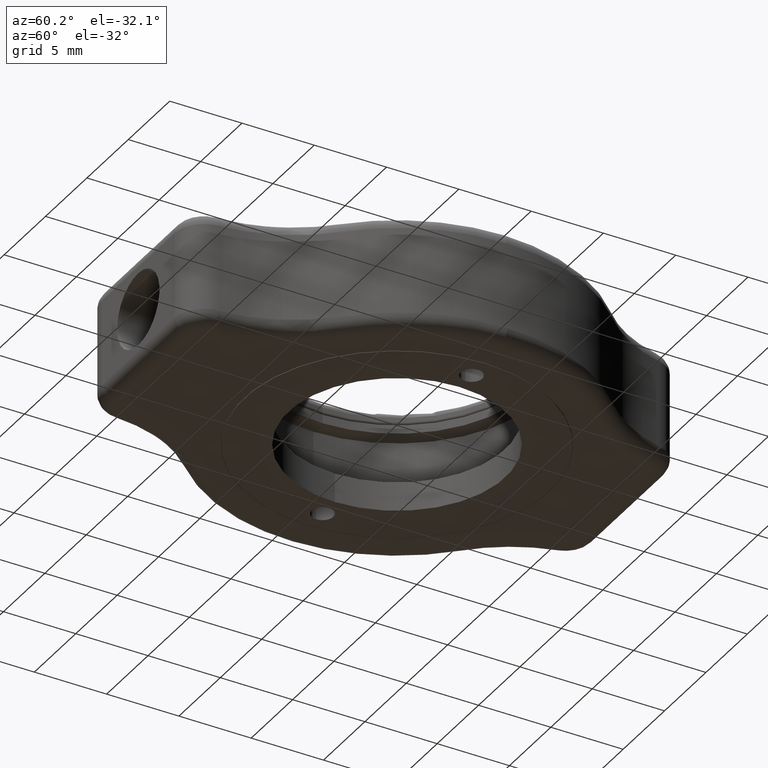
[diagram: clean part render]
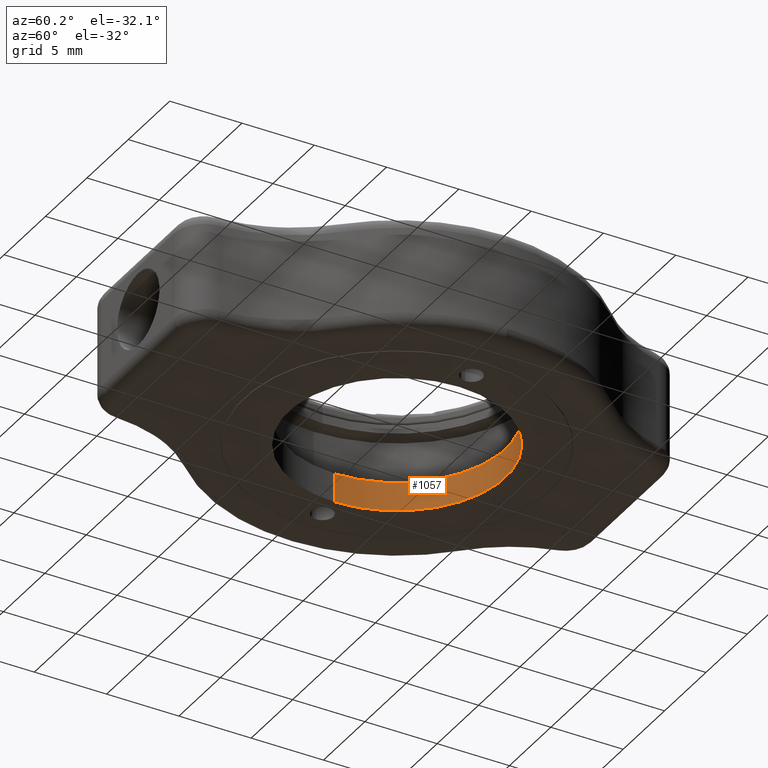
[diagram: same view with one face highlighted and labeled with its STEP entity id]
A machine part, auxiliary view. The second image highlights one B-rep face of the part: STEP entity #1057.
In plain terms, the highlighted cylindrical surface (partial cylindrical patch) has radius 7.5 mm, axis along (-0, -0, -1).
Its self-contained STEP definition (entity closure, byte-faithful):
#30 = AXIS2_PLACEMENT_3D ( 'NONE', #1720, #1380, #317 ) ;
#35 = CIRCLE ( 'NONE', #296, 7.500000000000000000 ) ;
#70 = ORIENTED_EDGE ( 'NONE', *, *, #1035, .F. ) ;
#128 = CARTESIAN_POINT ( 'NONE',  ( 2.223772548633339100, 1.633371797953784300, 32.00000000000000000 ) ) ;
#130 = VERTEX_POINT ( 'NONE', #1569 ) ;
#192 = LINE ( 'NONE', #2086, #1557 ) ;
#224 = CYLINDRICAL_SURFACE ( 'NONE', #1590, 7.500000000000000000 ) ;
#296 = AXIS2_PLACEMENT_3D ( 'NONE', #2105, #1575, #1031 ) ;
#317 = DIRECTION ( 'NONE',  ( 1.000000000000000000, 0.0000000000000000000, 0.0000000000000000000 ) ) ;
#322 = CARTESIAN_POINT ( 'NONE',  ( -5.276227451366660900, 1.633371797953784300, 30.00000000000000400 ) ) ;
#500 = LINE ( 'NONE', #1817, #1335 ) ;
#522 = EDGE_CURVE ( 'NONE', #620, #934, #35, .T. ) ;
#620 = VERTEX_POINT ( 'NONE', #865 ) ;
#657 = DIRECTION ( 'NONE',  ( -0.0000000000000000000, -0.0000000000000000000, -1.000000000000000000 ) ) ;
#680 = DIRECTION ( 'NONE',  ( -1.000000000000000000, 0.0000000000000000000, 0.0000000000000000000 ) ) ;
#763 = DIRECTION ( 'NONE',  ( -0.0000000000000000000, -0.0000000000000000000, -1.000000000000000000 ) ) ;
#865 = CARTESIAN_POINT ( 'NONE',  ( 9.723772548633338200, 1.633371797953785200, 32.00000000000000000 ) ) ;
#906 = EDGE_LOOP ( 'NONE', ( #1650, #1620, #1032, #70 ) ) ;
#934 = VERTEX_POINT ( 'NONE', #1687 ) ;
#1031 = DIRECTION ( 'NONE',  ( 1.000000000000000000, 0.0000000000000000000, 0.0000000000000000000 ) ) ;
#1032 = ORIENTED_EDGE ( 'NONE', *, *, #1973, .T. ) ;
#1035 = EDGE_CURVE ( 'NONE', #130, #2097, #2223, .T. ) ;
#1057 = ADVANCED_FACE ( 'NONE', ( #1748 ), #224, .F. ) ;
#1272 = EDGE_CURVE ( 'NONE', #620, #130, #500, .T. ) ;
#1335 = VECTOR ( 'NONE', #763, 1000.000000000000000 ) ;
#1364 = DIRECTION ( 'NONE',  ( -0.0000000000000000000, -0.0000000000000000000, -1.000000000000000000 ) ) ;
#1380 = DIRECTION ( 'NONE',  ( 0.0000000000000000000, 0.0000000000000000000, 1.000000000000000000 ) ) ;
#1557 = VECTOR ( 'NONE', #657, 1000.000000000000000 ) ;
#1569 = CARTESIAN_POINT ( 'NONE',  ( 9.723772548633338200, 1.633371797953785200, 30.00000000000000400 ) ) ;
#1575 = DIRECTION ( 'NONE',  ( 0.0000000000000000000, 0.0000000000000000000, 1.000000000000000000 ) ) ;
#1590 = AXIS2_PLACEMENT_3D ( 'NONE', #128, #1364, #680 ) ;
#1620 = ORIENTED_EDGE ( 'NONE', *, *, #522, .T. ) ;
#1650 = ORIENTED_EDGE ( 'NONE', *, *, #1272, .F. ) ;
#1687 = CARTESIAN_POINT ( 'NONE',  ( -5.276227451366660900, 1.633371797953784300, 32.00000000000000000 ) ) ;
#1720 = CARTESIAN_POINT ( 'NONE',  ( 2.223772548633339100, 1.633371797953784300, 30.00000000000000400 ) ) ;
#1748 = FACE_OUTER_BOUND ( 'NONE', #906, .T. ) ;
#1817 = CARTESIAN_POINT ( 'NONE',  ( 9.723772548633338200, 1.633371797953785200, 32.00000000000000000 ) ) ;
#1973 = EDGE_CURVE ( 'NONE', #934, #2097, #192, .T. ) ;
#2086 = CARTESIAN_POINT ( 'NONE',  ( -5.276227451366660900, 1.633371797953784300, 32.00000000000000000 ) ) ;
#2097 = VERTEX_POINT ( 'NONE', #322 ) ;
#2105 = CARTESIAN_POINT ( 'NONE',  ( 2.223772548633339100, 1.633371797953784300, 32.00000000000000000 ) ) ;
#2223 = CIRCLE ( 'NONE', #30, 7.500000000000000000 ) ;